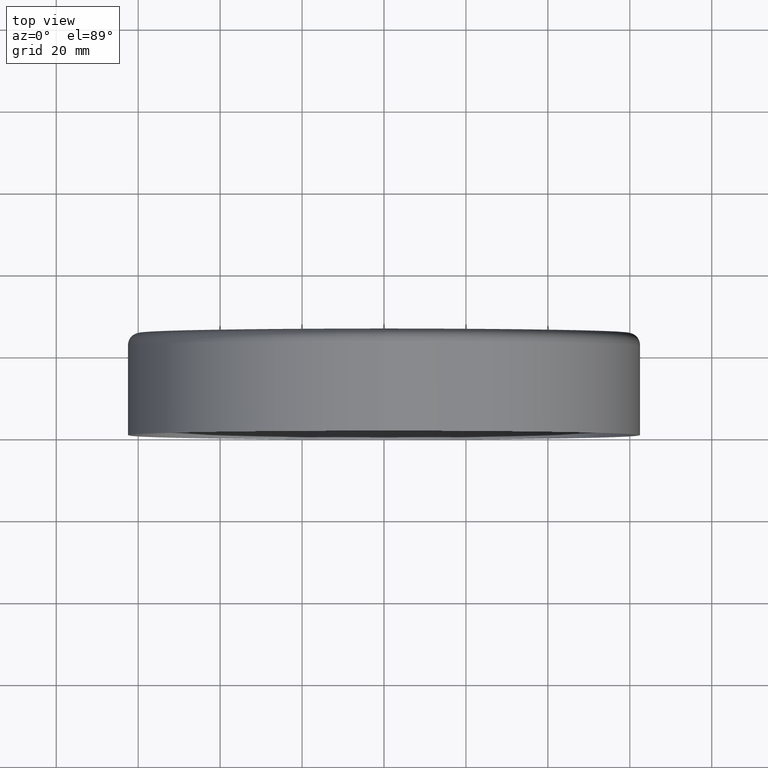
[diagram: clean part render]
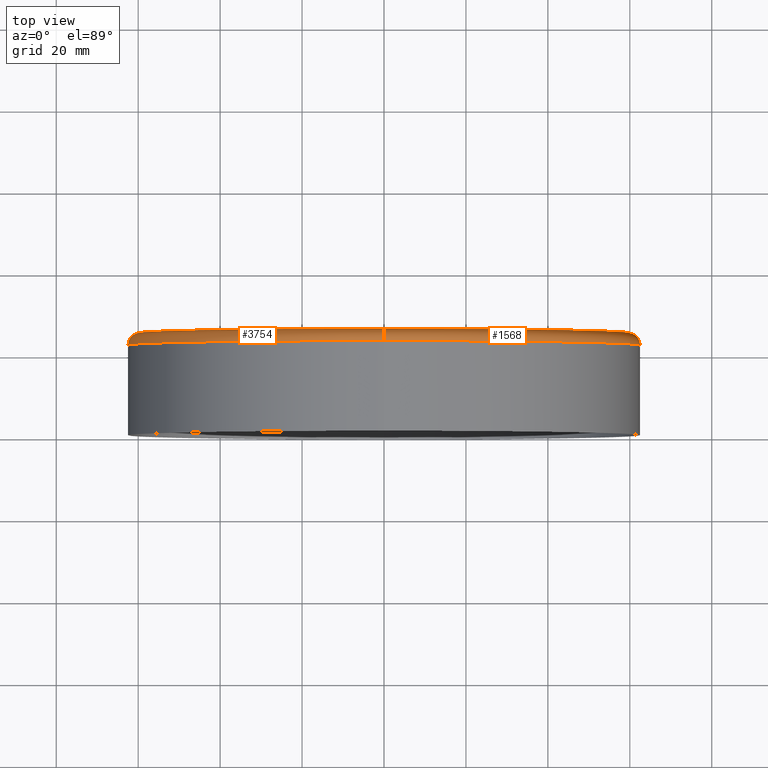
[diagram: same view with one multi-face feature highlighted, each face labeled with its STEP entity id]
A machine part, top view. The highlighted faces form ONE feature: a constant-radius fillet chain: 2 tangent blend faces with common blend radius 3 mm. The faces share edges in the B-rep.
Their STEP definitions:
[1] entity #1568 (Torus):
#46 = ORIENTED_EDGE ( 'NONE', *, *, #6585, .T. ) ;
#568 = AXIS2_PLACEMENT_3D ( 'NONE', #13599, #1919, #8411 ) ;
#826 = DIRECTION ( 'NONE',  ( -1.000000000000000000, 0.000000000000000000, 0.000000000000000000 ) ) ;
#1516 = DIRECTION ( 'NONE',  ( 0.000000000000000000, 0.000000000000000000, -1.000000000000000000 ) ) ;
#1568 = ADVANCED_FACE ( 'NONE', ( #11914 ), #4504, .T. ) ;
#1569 = CARTESIAN_POINT ( 'NONE',  ( 0.000000000000000000, 22.00000000000000355, 0.000000000000000000 ) ) ;
#1881 = VERTEX_POINT ( 'NONE', #9910 ) ;
#1919 = DIRECTION ( 'NONE',  ( 1.000000000000000000, 0.000000000000000000, -1.224646799147353207E-16 ) ) ;
#2233 = CIRCLE ( 'NONE', #16112, 62.50000000000000000 ) ;
#2713 = VERTEX_POINT ( 'NONE', #10072 ) ;
#3489 = CARTESIAN_POINT ( 'NONE',  ( 0.000000000000000000, 25.00000000000000000, 0.000000000000000000 ) ) ;
#3549 = ORIENTED_EDGE ( 'NONE', *, *, #5843, .F. ) ;
#4504 = TOROIDAL_SURFACE ( 'NONE', #6864, 59.50000000000000000, 3.000000000000000888 ) ;
#4792 = DIRECTION ( 'NONE',  ( -0.000000000000000000, -1.000000000000000000, -0.000000000000000000 ) ) ;
#5149 = ORIENTED_EDGE ( 'NONE', *, *, #6377, .F. ) ;
#5492 = AXIS2_PLACEMENT_3D ( 'NONE', #14747, #826, #7109 ) ;
#5843 = EDGE_CURVE ( 'NONE', #2713, #9793, #9884, .T. ) ;
#6377 = EDGE_CURVE ( 'NONE', #9793, #16442, #2233, .T. ) ;
#6585 = EDGE_CURVE ( 'NONE', #2713, #1881, #12054, .T. ) ;
#6864 = AXIS2_PLACEMENT_3D ( 'NONE', #1569, #14178, #1516 ) ;
#6878 = DIRECTION ( 'NONE',  ( 0.000000000000000000, 0.000000000000000000, -1.000000000000000000 ) ) ;
#7109 = DIRECTION ( 'NONE',  ( 0.000000000000000000, 0.000000000000000000, 1.000000000000000000 ) ) ;
#7114 = DIRECTION ( 'NONE',  ( -0.000000000000000000, -1.000000000000000000, -0.000000000000000000 ) ) ;
#7383 = EDGE_CURVE ( 'NONE', #1881, #16442, #10864, .T. ) ;
#7843 = AXIS2_PLACEMENT_3D ( 'NONE', #3489, #4792, #15038 ) ;
#8411 = DIRECTION ( 'NONE',  ( -1.224646799147351975E-16, 0.000000000000000000, -1.000000000000000000 ) ) ;
#9141 = EDGE_LOOP ( 'NONE', ( #46, #11941, #5149, #3549 ) ) ;
#9793 = VERTEX_POINT ( 'NONE', #16382 ) ;
#9884 = CIRCLE ( 'NONE', #5492, 3.000000000000002665 ) ;
#9910 = CARTESIAN_POINT ( 'NONE',  ( 7.470345474798853504E-15, 25.00000000000000000, 59.50000000000000000 ) ) ;
#10072 = CARTESIAN_POINT ( 'NONE',  ( 0.000000000000000000, 25.00000000000000000, -59.50000000000000000 ) ) ;
#10864 = CIRCLE ( 'NONE', #568, 3.000000000000002665 ) ;
#11914 = FACE_OUTER_BOUND ( 'NONE', #9141, .T. ) ;
#11941 = ORIENTED_EDGE ( 'NONE', *, *, #7383, .T. ) ;
#12054 = CIRCLE ( 'NONE', #7843, 59.50000000000000000 ) ;
#13599 = CARTESIAN_POINT ( 'NONE',  ( 7.286648454926750781E-15, 22.00000000000000355, 59.50000000000000000 ) ) ;
#13866 = CARTESIAN_POINT ( 'NONE',  ( 7.654042494670957804E-15, 22.00000000000000355, 62.50000000000000000 ) ) ;
#14178 = DIRECTION ( 'NONE',  ( -0.000000000000000000, -1.000000000000000000, -0.000000000000000000 ) ) ;
#14747 = CARTESIAN_POINT ( 'NONE',  ( 0.000000000000000000, 22.00000000000000355, -59.50000000000000000 ) ) ;
#15038 = DIRECTION ( 'NONE',  ( 0.000000000000000000, 0.000000000000000000, -1.000000000000000000 ) ) ;
#15885 = CARTESIAN_POINT ( 'NONE',  ( 0.000000000000000000, 22.00000000000000355, 0.000000000000000000 ) ) ;
#16112 = AXIS2_PLACEMENT_3D ( 'NONE', #15885, #7114, #6878 ) ;
#16382 = CARTESIAN_POINT ( 'NONE',  ( 0.000000000000000000, 22.00000000000000355, -62.50000000000000000 ) ) ;
#16442 = VERTEX_POINT ( 'NONE', #13866 ) ;
[2] entity #3754 (Torus):
#312 = ORIENTED_EDGE ( 'NONE', *, *, #5843, .T. ) ;
#568 = AXIS2_PLACEMENT_3D ( 'NONE', #13599, #1919, #8411 ) ;
#719 = EDGE_CURVE ( 'NONE', #1881, #2713, #9736, .T. ) ;
#772 = ORIENTED_EDGE ( 'NONE', *, *, #8014, .F. ) ;
#826 = DIRECTION ( 'NONE',  ( -1.000000000000000000, 0.000000000000000000, 0.000000000000000000 ) ) ;
#906 = TOROIDAL_SURFACE ( 'NONE', #13932, 59.50000000000000000, 3.000000000000000888 ) ;
#1485 = DIRECTION ( 'NONE',  ( -0.000000000000000000, -1.000000000000000000, -0.000000000000000000 ) ) ;
#1881 = VERTEX_POINT ( 'NONE', #9910 ) ;
#1919 = DIRECTION ( 'NONE',  ( 1.000000000000000000, 0.000000000000000000, -1.224646799147353207E-16 ) ) ;
#2565 = DIRECTION ( 'NONE',  ( 0.000000000000000000, 0.000000000000000000, -1.000000000000000000 ) ) ;
#2699 = DIRECTION ( 'NONE',  ( -0.000000000000000000, -1.000000000000000000, -0.000000000000000000 ) ) ;
#2713 = VERTEX_POINT ( 'NONE', #10072 ) ;
#2786 = DIRECTION ( 'NONE',  ( -0.000000000000000000, -1.000000000000000000, -0.000000000000000000 ) ) ;
#2878 = DIRECTION ( 'NONE',  ( 0.000000000000000000, 0.000000000000000000, -1.000000000000000000 ) ) ;
#3754 = ADVANCED_FACE ( 'NONE', ( #8116 ), #906, .T. ) ;
#4265 = CARTESIAN_POINT ( 'NONE',  ( 0.000000000000000000, 22.00000000000000355, 0.000000000000000000 ) ) ;
#5380 = AXIS2_PLACEMENT_3D ( 'NONE', #4265, #1485, #6744 ) ;
#5492 = AXIS2_PLACEMENT_3D ( 'NONE', #14747, #826, #7109 ) ;
#5843 = EDGE_CURVE ( 'NONE', #2713, #9793, #9884, .T. ) ;
#5971 = ORIENTED_EDGE ( 'NONE', *, *, #7383, .F. ) ;
#6744 = DIRECTION ( 'NONE',  ( 0.000000000000000000, 0.000000000000000000, -1.000000000000000000 ) ) ;
#7109 = DIRECTION ( 'NONE',  ( 0.000000000000000000, 0.000000000000000000, 1.000000000000000000 ) ) ;
#7383 = EDGE_CURVE ( 'NONE', #1881, #16442, #10864, .T. ) ;
#7838 = CIRCLE ( 'NONE', #5380, 62.50000000000000000 ) ;
#8014 = EDGE_CURVE ( 'NONE', #16442, #9793, #7838, .T. ) ;
#8116 = FACE_OUTER_BOUND ( 'NONE', #12084, .T. ) ;
#8411 = DIRECTION ( 'NONE',  ( -1.224646799147351975E-16, 0.000000000000000000, -1.000000000000000000 ) ) ;
#9736 = CIRCLE ( 'NONE', #12949, 59.50000000000000000 ) ;
#9793 = VERTEX_POINT ( 'NONE', #16382 ) ;
#9884 = CIRCLE ( 'NONE', #5492, 3.000000000000002665 ) ;
#9910 = CARTESIAN_POINT ( 'NONE',  ( 7.470345474798853504E-15, 25.00000000000000000, 59.50000000000000000 ) ) ;
#10072 = CARTESIAN_POINT ( 'NONE',  ( 0.000000000000000000, 25.00000000000000000, -59.50000000000000000 ) ) ;
#10272 = CARTESIAN_POINT ( 'NONE',  ( 0.000000000000000000, 25.00000000000000000, 0.000000000000000000 ) ) ;
#10864 = CIRCLE ( 'NONE', #568, 3.000000000000002665 ) ;
#12084 = EDGE_LOOP ( 'NONE', ( #5971, #15692, #312, #772 ) ) ;
#12949 = AXIS2_PLACEMENT_3D ( 'NONE', #10272, #2786, #2565 ) ;
#13599 = CARTESIAN_POINT ( 'NONE',  ( 7.286648454926750781E-15, 22.00000000000000355, 59.50000000000000000 ) ) ;
#13866 = CARTESIAN_POINT ( 'NONE',  ( 7.654042494670957804E-15, 22.00000000000000355, 62.50000000000000000 ) ) ;
#13932 = AXIS2_PLACEMENT_3D ( 'NONE', #16574, #2699, #2878 ) ;
#14747 = CARTESIAN_POINT ( 'NONE',  ( 0.000000000000000000, 22.00000000000000355, -59.50000000000000000 ) ) ;
#15692 = ORIENTED_EDGE ( 'NONE', *, *, #719, .T. ) ;
#16382 = CARTESIAN_POINT ( 'NONE',  ( 0.000000000000000000, 22.00000000000000355, -62.50000000000000000 ) ) ;
#16442 = VERTEX_POINT ( 'NONE', #13866 ) ;
#16574 = CARTESIAN_POINT ( 'NONE',  ( 0.000000000000000000, 22.00000000000000355, 0.000000000000000000 ) ) ;